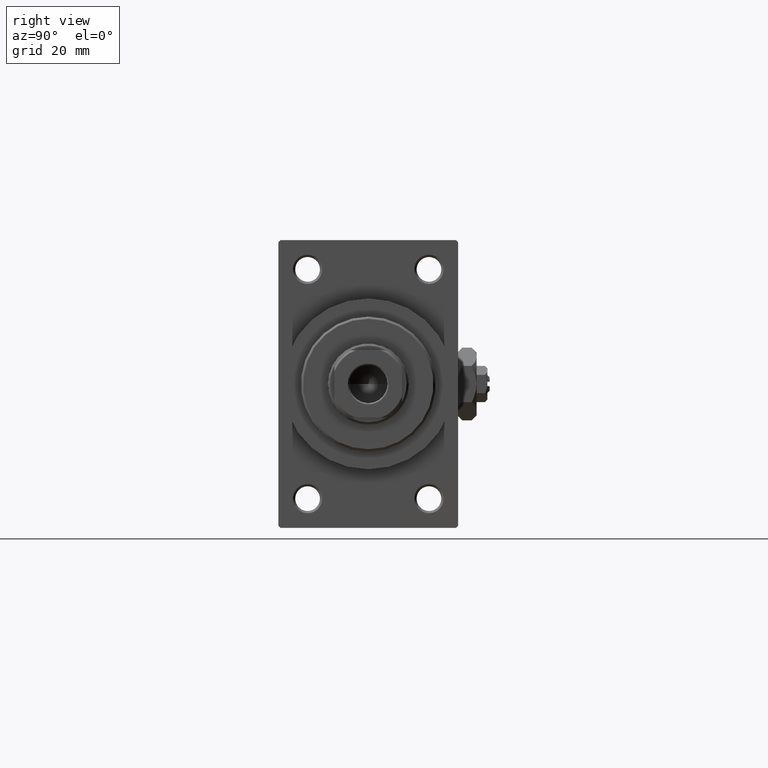
[diagram: clean part render]
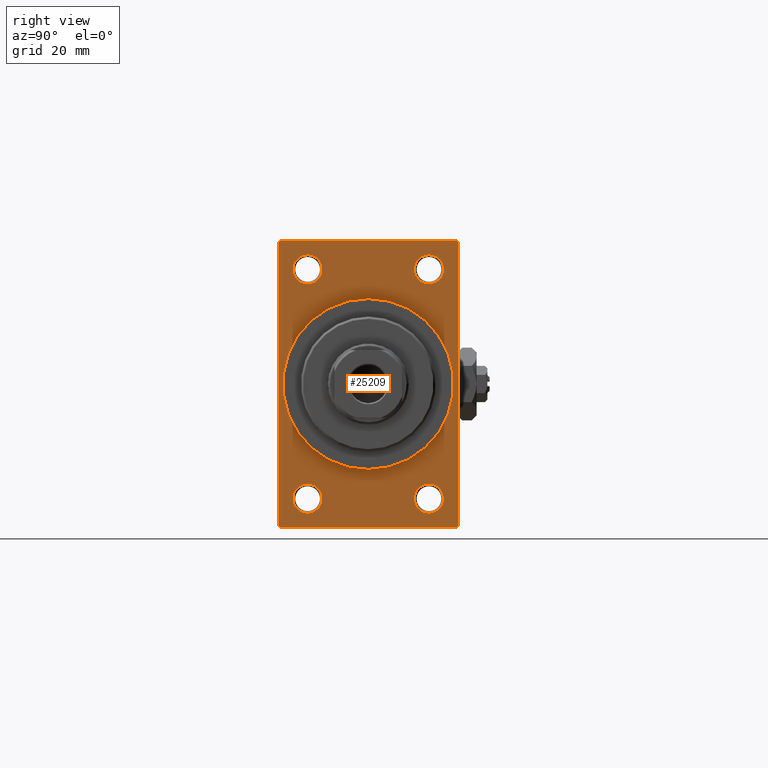
[diagram: same view with one face highlighted and labeled with its STEP entity id]
A machine part, right view. The second image highlights one B-rep face of the part: STEP entity #25209.
In plain terms, the highlighted planar face has unit normal (-1, 0, 0).
Its self-contained STEP definition (entity closure, byte-faithful):
#352 = VERTEX_POINT ( 'NONE', #36416 ) ;
#1392 = CARTESIAN_POINT ( 'NONE',  ( 109.0000000000000142, -19.49999999999998579, 31.99999999999999289 ) ) ;
#2102 = LINE ( 'NONE', #9015, #3624 ) ;
#2206 = CARTESIAN_POINT ( 'NONE',  ( 109.0000000000000142, 13.49999999999999822, -25.50000000000000000 ) ) ;
#2218 = DIRECTION ( 'NONE',  ( 1.000000000000000000, 0.000000000000000000, 0.000000000000000000 ) ) ;
#3415 = DIRECTION ( 'NONE',  ( 0.000000000000000000, 0.000000000000000000, 1.000000000000000000 ) ) ;
#3531 = DIRECTION ( 'NONE',  ( 1.000000000000000000, 0.000000000000000000, 0.000000000000000000 ) ) ;
#3624 = VECTOR ( 'NONE', #20317, 1000.000000000000000 ) ;
#3764 = DIRECTION ( 'NONE',  ( -0.000000000000000000, -0.7071067811865474617, -0.7071067811865474617 ) ) ;
#4151 = CARTESIAN_POINT ( 'NONE',  ( 109.0000000000000142, -13.50000000000000533, -28.74999999999999645 ) ) ;
#4330 = ORIENTED_EDGE ( 'NONE', *, *, #15803, .T. ) ;
#4336 = DIRECTION ( 'NONE',  ( 0.000000000000000000, 0.000000000000000000, 1.000000000000000000 ) ) ;
#4445 = EDGE_LOOP ( 'NONE', ( #17158, #4330, #14281, #28032, #42468, #15026, #8232, #42676 ) ) ;
#4762 = ORIENTED_EDGE ( 'NONE', *, *, #6937, .T. ) ;
#4967 = CIRCLE ( 'NONE', #38777, 3.250000000000002665 ) ;
#4991 = CIRCLE ( 'NONE', #8941, 3.250000000000002665 ) ;
#5103 = DIRECTION ( 'NONE',  ( -1.000000000000000000, -0.000000000000000000, -0.000000000000000000 ) ) ;
#5184 = LINE ( 'NONE', #13319, #18193 ) ;
#5204 = CARTESIAN_POINT ( 'NONE',  ( 109.0000000000000142, 0.000000000000000000, 19.00000000000000000 ) ) ;
#5513 = CIRCLE ( 'NONE', #14980, 19.00000000000000000 ) ;
#5689 = DIRECTION ( 'NONE',  ( -1.000000000000000000, -0.000000000000000000, -0.000000000000000000 ) ) ;
#5914 = DIRECTION ( 'NONE',  ( 0.000000000000000000, 0.000000000000000000, -1.000000000000000000 ) ) ;
#6068 = EDGE_LOOP ( 'NONE', ( #28488, #30941 ) ) ;
#6236 = EDGE_CURVE ( 'NONE', #19820, #22764, #9776, .T. ) ;
#6632 = CARTESIAN_POINT ( 'NONE',  ( 109.0000000000000142, -13.50000000000000178, 25.50000000000000355 ) ) ;
#6937 = EDGE_CURVE ( 'NONE', #31850, #23193, #4991, .T. ) ;
#7039 = DIRECTION ( 'NONE',  ( 0.000000000000000000, -1.000000000000000000, -1.734723475976807094E-16 ) ) ;
#7102 = EDGE_CURVE ( 'NONE', #38860, #25231, #28660, .T. ) ;
#7574 = CARTESIAN_POINT ( 'NONE',  ( 109.0000000000000142, 13.49999999999999822, 22.25000000000004263 ) ) ;
#8232 = ORIENTED_EDGE ( 'NONE', *, *, #43197, .T. ) ;
#8941 = AXIS2_PLACEMENT_3D ( 'NONE', #46075, #31284, #42368 ) ;
#9015 = CARTESIAN_POINT ( 'NONE',  ( 109.0000000000000142, 20.00000000000000000, -32.00000000000000000 ) ) ;
#9638 = DIRECTION ( 'NONE',  ( 0.000000000000000000, 0.000000000000000000, 1.000000000000000000 ) ) ;
#9776 = CIRCLE ( 'NONE', #27019, 3.250000000000002665 ) ;
#10036 = CIRCLE ( 'NONE', #44635, 3.250000000000002665 ) ;
#10150 = DIRECTION ( 'NONE',  ( 0.000000000000000000, 0.000000000000000000, 1.000000000000000000 ) ) ;
#10166 = LINE ( 'NONE', #47105, #35142 ) ;
#10522 = DIRECTION ( 'NONE',  ( -0.000000000000000000, 0.7071067811865474617, 0.7071067811865474617 ) ) ;
#10668 = VERTEX_POINT ( 'NONE', #5204 ) ;
#11981 = ORIENTED_EDGE ( 'NONE', *, *, #6236, .T. ) ;
#11988 = CARTESIAN_POINT ( 'NONE',  ( 109.0000000000000142, 0.000000000000000000, 0.000000000000000000 ) ) ;
#12436 = ORIENTED_EDGE ( 'NONE', *, *, #29561, .T. ) ;
#12789 = VECTOR ( 'NONE', #7039, 1000.000000000000000 ) ;
#12820 = CIRCLE ( 'NONE', #40352, 3.249999999999961364 ) ;
#13217 = EDGE_LOOP ( 'NONE', ( #11981, #12436 ) ) ;
#13319 = CARTESIAN_POINT ( 'NONE',  ( 109.0000000000000142, 19.49999999999998579, 32.00000000000000000 ) ) ;
#13426 = VECTOR ( 'NONE', #5914, 1000.000000000000000 ) ;
#13854 = CARTESIAN_POINT ( 'NONE',  ( 109.0000000000000142, 13.49999999999999822, -25.50000000000000000 ) ) ;
#13949 = VECTOR ( 'NONE', #25463, 1000.000000000000000 ) ;
#14043 = DIRECTION ( 'NONE',  ( -1.000000000000000000, -0.000000000000000000, -0.000000000000000000 ) ) ;
#14049 = VERTEX_POINT ( 'NONE', #25573 ) ;
#14281 = ORIENTED_EDGE ( 'NONE', *, *, #17076, .F. ) ;
#14759 = DIRECTION ( 'NONE',  ( -1.000000000000000000, -0.000000000000000000, -0.000000000000000000 ) ) ;
#14964 = FACE_BOUND ( 'NONE', #41717, .T. ) ;
#14980 = AXIS2_PLACEMENT_3D ( 'NONE', #47288, #2218, #17248 ) ;
#15026 = ORIENTED_EDGE ( 'NONE', *, *, #40869, .T. ) ;
#15138 = VECTOR ( 'NONE', #10522, 1000.000000000000114 ) ;
#15219 = CARTESIAN_POINT ( 'NONE',  ( 109.0000000000000142, 2.326828918379970970E-15, -19.00000000000000000 ) ) ;
#15529 = EDGE_CURVE ( 'NONE', #40180, #27524, #43951, .T. ) ;
#15580 = CARTESIAN_POINT ( 'NONE',  ( 109.0000000000000142, 20.00000000000000000, 32.00000000000000000 ) ) ;
#15803 = EDGE_CURVE ( 'NONE', #42932, #352, #10166, .T. ) ;
#17076 = EDGE_CURVE ( 'NONE', #17419, #352, #2102, .T. ) ;
#17158 = ORIENTED_EDGE ( 'NONE', *, *, #30615, .T. ) ;
#17248 = DIRECTION ( 'NONE',  ( 0.000000000000000000, 0.000000000000000000, -1.000000000000000000 ) ) ;
#17419 = VERTEX_POINT ( 'NONE', #24697 ) ;
#17948 = CARTESIAN_POINT ( 'NONE',  ( 109.0000000000000142, -20.00000000000000000, 31.49999999999997868 ) ) ;
#18193 = VECTOR ( 'NONE', #35465, 1000.000000000000114 ) ;
#19368 = FACE_BOUND ( 'NONE', #6068, .T. ) ;
#19753 = EDGE_CURVE ( 'NONE', #23193, #31850, #10036, .T. ) ;
#19820 = VERTEX_POINT ( 'NONE', #37600 ) ;
#20317 = DIRECTION ( 'NONE',  ( 0.000000000000000000, -1.000000000000000000, 0.000000000000000000 ) ) ;
#20797 = ORIENTED_EDGE ( 'NONE', *, *, #19753, .T. ) ;
#20915 = AXIS2_PLACEMENT_3D ( 'NONE', #2206, #14043, #43581 ) ;
#21709 = DIRECTION ( 'NONE',  ( -1.000000000000000000, -0.000000000000000000, -0.000000000000000000 ) ) ;
#21835 = VERTEX_POINT ( 'NONE', #17948 ) ;
#22460 = CIRCLE ( 'NONE', #20915, 3.250000000000002665 ) ;
#22764 = VERTEX_POINT ( 'NONE', #27320 ) ;
#22816 = DIRECTION ( 'NONE',  ( 0.000000000000000000, 0.000000000000000000, 1.000000000000000000 ) ) ;
#23193 = VERTEX_POINT ( 'NONE', #4151 ) ;
#23293 = FACE_OUTER_BOUND ( 'NONE', #4445, .T. ) ;
#23553 = DIRECTION ( 'NONE',  ( 0.000000000000000000, 0.000000000000000000, 1.000000000000000000 ) ) ;
#24697 = CARTESIAN_POINT ( 'NONE',  ( 109.0000000000000142, 19.49999999999998579, -32.00000000000000000 ) ) ;
#25160 = DIRECTION ( 'NONE',  ( 0.000000000000000000, 0.7071067811865426878, -0.7071067811865524577 ) ) ;
#25209 = ADVANCED_FACE ( 'NONE', ( #41540, #14964, #19368, #38556, #30688, #23293 ), #45713, .F. ) ;
#25231 = VERTEX_POINT ( 'NONE', #7574 ) ;
#25463 = DIRECTION ( 'NONE',  ( 0.000000000000000000, 0.000000000000000000, -1.000000000000000000 ) ) ;
#25573 = CARTESIAN_POINT ( 'NONE',  ( 109.0000000000000142, 13.49999999999999822, -22.24999999999999645 ) ) ;
#25803 = CARTESIAN_POINT ( 'NONE',  ( 109.0000000000000142, -20.00000000000000000, -31.49999999999997868 ) ) ;
#26677 = EDGE_CURVE ( 'NONE', #10668, #28708, #5513, .T. ) ;
#26981 = DIRECTION ( 'NONE',  ( -1.000000000000000000, 0.000000000000000000, -0.000000000000000000 ) ) ;
#27019 = AXIS2_PLACEMENT_3D ( 'NONE', #30439, #38065, #4336 ) ;
#27168 = VERTEX_POINT ( 'NONE', #29115 ) ;
#27229 = DIRECTION ( 'NONE',  ( -1.000000000000000000, -0.000000000000000000, -0.000000000000000000 ) ) ;
#27320 = CARTESIAN_POINT ( 'NONE',  ( 109.0000000000000142, -13.50000000000000178, 28.75000000000000355 ) ) ;
#27524 = VERTEX_POINT ( 'NONE', #36701 ) ;
#28032 = ORIENTED_EDGE ( 'NONE', *, *, #35298, .T. ) ;
#28488 = ORIENTED_EDGE ( 'NONE', *, *, #40248, .T. ) ;
#28489 = LINE ( 'NONE', #39837, #15138 ) ;
#28660 = CIRCLE ( 'NONE', #43603, 3.249999999999961364 ) ;
#28708 = VERTEX_POINT ( 'NONE', #15219 ) ;
#29115 = CARTESIAN_POINT ( 'NONE',  ( 109.0000000000000142, 13.49999999999999822, -28.75000000000000000 ) ) ;
#29404 = EDGE_CURVE ( 'NONE', #46016, #21835, #48348, .T. ) ;
#29450 = LINE ( 'NONE', #15580, #12789 ) ;
#29561 = EDGE_CURVE ( 'NONE', #22764, #19820, #40904, .T. ) ;
#29624 = CARTESIAN_POINT ( 'NONE',  ( 109.0000000000000142, -20.00000000000000000, 31.49999999999997868 ) ) ;
#30439 = CARTESIAN_POINT ( 'NONE',  ( 109.0000000000000142, -13.50000000000000178, 25.50000000000000355 ) ) ;
#30615 = EDGE_CURVE ( 'NONE', #21835, #42932, #35704, .T. ) ;
#30685 = ORIENTED_EDGE ( 'NONE', *, *, #26677, .F. ) ;
#30688 = FACE_BOUND ( 'NONE', #31714, .T. ) ;
#30727 = ORIENTED_EDGE ( 'NONE', *, *, #7102, .T. ) ;
#30941 = ORIENTED_EDGE ( 'NONE', *, *, #36819, .T. ) ;
#31284 = DIRECTION ( 'NONE',  ( -1.000000000000000000, -0.000000000000000000, -0.000000000000000000 ) ) ;
#31714 = EDGE_LOOP ( 'NONE', ( #30685, #33530 ) ) ;
#31850 = VERTEX_POINT ( 'NONE', #32203 ) ;
#32203 = CARTESIAN_POINT ( 'NONE',  ( 109.0000000000000142, -13.50000000000000533, -22.24999999999999289 ) ) ;
#33530 = ORIENTED_EDGE ( 'NONE', *, *, #34066, .F. ) ;
#33802 = ORIENTED_EDGE ( 'NONE', *, *, #36212, .T. ) ;
#34066 = EDGE_CURVE ( 'NONE', #28708, #10668, #41801, .T. ) ;
#35142 = VECTOR ( 'NONE', #25160, 1000.000000000000000 ) ;
#35298 = EDGE_CURVE ( 'NONE', #17419, #27524, #28489, .T. ) ;
#35465 = DIRECTION ( 'NONE',  ( 0.000000000000000000, -0.7071067811865474617, 0.7071067811865474617 ) ) ;
#35704 = LINE ( 'NONE', #35949, #13426 ) ;
#35949 = CARTESIAN_POINT ( 'NONE',  ( 109.0000000000000142, -20.00000000000000000, 31.99999999999999289 ) ) ;
#36212 = EDGE_CURVE ( 'NONE', #25231, #38860, #12820, .T. ) ;
#36416 = CARTESIAN_POINT ( 'NONE',  ( 109.0000000000000142, -19.49999999999998579, -32.00000000000000000 ) ) ;
#36701 = CARTESIAN_POINT ( 'NONE',  ( 109.0000000000000142, 20.00000000000000000, -31.49999999999998579 ) ) ;
#36819 = EDGE_CURVE ( 'NONE', #14049, #27168, #4967, .T. ) ;
#37600 = CARTESIAN_POINT ( 'NONE',  ( 109.0000000000000142, -13.50000000000000178, 22.25000000000000000 ) ) ;
#38065 = DIRECTION ( 'NONE',  ( -1.000000000000000000, -0.000000000000000000, -0.000000000000000000 ) ) ;
#38556 = FACE_BOUND ( 'NONE', #45724, .T. ) ;
#38777 = AXIS2_PLACEMENT_3D ( 'NONE', #13854, #21709, #10150 ) ;
#38834 = CARTESIAN_POINT ( 'NONE',  ( 109.0000000000000142, 13.49999999999999822, 25.50000000000000355 ) ) ;
#38860 = VERTEX_POINT ( 'NONE', #38976 ) ;
#38976 = CARTESIAN_POINT ( 'NONE',  ( 109.0000000000000142, 13.49999999999999822, 28.74999999999996803 ) ) ;
#39248 = VERTEX_POINT ( 'NONE', #44000 ) ;
#39653 = CARTESIAN_POINT ( 'NONE',  ( 109.0000000000000142, 20.00000000000000000, 31.49999999999998579 ) ) ;
#39837 = CARTESIAN_POINT ( 'NONE',  ( 109.0000000000000142, 20.00000000000000000, -31.49999999999998579 ) ) ;
#40004 = CARTESIAN_POINT ( 'NONE',  ( 109.0000000000000142, 0.000000000000000000, 0.000000000000000000 ) ) ;
#40180 = VERTEX_POINT ( 'NONE', #39653 ) ;
#40241 = DIRECTION ( 'NONE',  ( 0.000000000000000000, 0.000000000000000000, -1.000000000000000000 ) ) ;
#40248 = EDGE_CURVE ( 'NONE', #27168, #14049, #22460, .T. ) ;
#40352 = AXIS2_PLACEMENT_3D ( 'NONE', #38834, #5103, #23553 ) ;
#40869 = EDGE_CURVE ( 'NONE', #40180, #39248, #5184, .T. ) ;
#40904 = CIRCLE ( 'NONE', #43248, 3.250000000000002665 ) ;
#41540 = FACE_BOUND ( 'NONE', #13217, .T. ) ;
#41717 = EDGE_LOOP ( 'NONE', ( #20797, #4762 ) ) ;
#41801 = CIRCLE ( 'NONE', #44969, 19.00000000000000000 ) ;
#42368 = DIRECTION ( 'NONE',  ( 0.000000000000000000, 0.000000000000000000, 1.000000000000000000 ) ) ;
#42464 = VECTOR ( 'NONE', #3764, 1000.000000000000114 ) ;
#42468 = ORIENTED_EDGE ( 'NONE', *, *, #15529, .F. ) ;
#42676 = ORIENTED_EDGE ( 'NONE', *, *, #29404, .T. ) ;
#42932 = VERTEX_POINT ( 'NONE', #25803 ) ;
#43101 = CARTESIAN_POINT ( 'NONE',  ( 109.0000000000000142, 13.49999999999999822, 25.50000000000000355 ) ) ;
#43197 = EDGE_CURVE ( 'NONE', #39248, #46016, #29450, .T. ) ;
#43248 = AXIS2_PLACEMENT_3D ( 'NONE', #6632, #14759, #3415 ) ;
#43581 = DIRECTION ( 'NONE',  ( 0.000000000000000000, 0.000000000000000000, 1.000000000000000000 ) ) ;
#43603 = AXIS2_PLACEMENT_3D ( 'NONE', #43101, #5689, #9638 ) ;
#43951 = LINE ( 'NONE', #47889, #13949 ) ;
#44000 = CARTESIAN_POINT ( 'NONE',  ( 109.0000000000000142, 19.49999999999998579, 32.00000000000000000 ) ) ;
#44635 = AXIS2_PLACEMENT_3D ( 'NONE', #45963, #27229, #22816 ) ;
#44969 = AXIS2_PLACEMENT_3D ( 'NONE', #40004, #3531, #40241 ) ;
#45713 = PLANE ( 'NONE',  #47947 ) ;
#45724 = EDGE_LOOP ( 'NONE', ( #33802, #30727 ) ) ;
#45963 = CARTESIAN_POINT ( 'NONE',  ( 109.0000000000000142, -13.50000000000000533, -25.49999999999999645 ) ) ;
#45964 = DIRECTION ( 'NONE',  ( -0.000000000000000000, 0.000000000000000000, 1.000000000000000000 ) ) ;
#46016 = VERTEX_POINT ( 'NONE', #1392 ) ;
#46075 = CARTESIAN_POINT ( 'NONE',  ( 109.0000000000000142, -13.50000000000000533, -25.49999999999999645 ) ) ;
#47105 = CARTESIAN_POINT ( 'NONE',  ( 109.0000000000000142, -19.49999999999998579, -32.00000000000000000 ) ) ;
#47288 = CARTESIAN_POINT ( 'NONE',  ( 109.0000000000000142, 0.000000000000000000, 0.000000000000000000 ) ) ;
#47889 = CARTESIAN_POINT ( 'NONE',  ( 109.0000000000000142, 20.00000000000000000, 32.00000000000000000 ) ) ;
#47947 = AXIS2_PLACEMENT_3D ( 'NONE', #11988, #26981, #45964 ) ;
#48348 = LINE ( 'NONE', #29624, #42464 ) ;